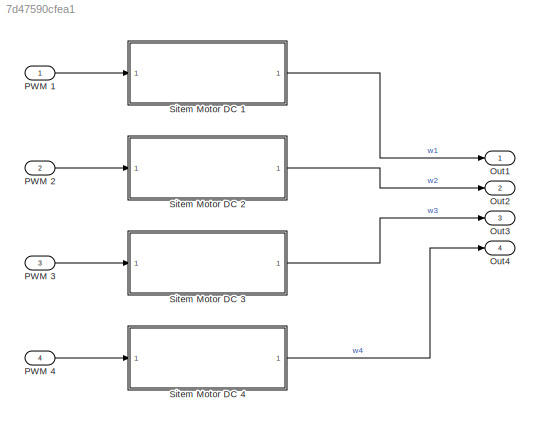
MODEL slx_7d47590cfea1
KIND model
CONFIG AbsTol = auto
CONFIG EnableMultiTasking = off
CONFIG FixedStep = auto
CONFIG MaxStep = auto
CONFIG MinStep = auto
CONFIG RelTol = 1e-3
CONFIG SampleTimeConstraint = Unconstrained
CONFIG SolverName = VariableStepAuto
CONFIG StartTime = 0.0
CONFIG StopTime = 0.03
BLOCK [Outport] Out1
BLOCK [Outport] Out2
  Port = 2
BLOCK [Outport] Out3
  Port = 3
BLOCK [Outport] Out4
  Port = 4
BLOCK [Inport] PWM 1
BLOCK [Inport] PWM 2
  Port = 2
BLOCK [Inport] PWM 3
  Port = 3
BLOCK [Inport] PWM 4
  Port = 4
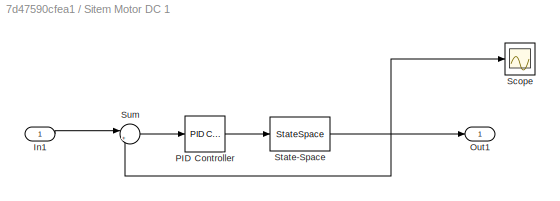
BLOCK [SubSystem] Sitem Motor DC 1
  Ports = [1, 1]
  RequestExecContextInheritance = off
BLOCK [Inport] Sitem Motor DC 1/In1
BLOCK [Outport] Sitem Motor DC 1/Out1
BLOCK [Reference] Sitem Motor DC 1/PID Controller  REF=pid_lib/PID Controller
  Ports = [1, 1]
  SourceBlock = pid_lib/PID Controller
  SourceProductBaseCode = SL
  SourceType = PID 1dof
BLOCK [Scope] Sitem Motor DC 1/Scope
  Floating = off
  NumInputPorts = 1
  Ports = [1]
  ScopeSpecificationString = Simulink.scopes.TimeScopeBlockCfg('CurrentConfiguration', extmgr.ConfigurationSet(extmgr.Configuration('Core','General UI',true),extmgr.Configuration('Core','Source UI',true),extmgr.Configuration('Sources','WiredSimulink',true),extmgr.Configuration('Visuals','Time Domain',true,'SerializedDisplays',{struct('MinYLimReal','-1.00000','MaxYLimReal','1.00000','YLabelReal','','MinYLimMag','0.00000','MaxY...<+1428ch>
BLOCK [StateSpace] Sitem Motor DC 1/State-Space
  A = A
  B = B
  C = C
  D = D
  InitialCondition = 0
  Ports = [1, 1]
BLOCK [Sum] Sitem Motor DC 1/Sum
  Inputs = |+-
  Ports = [2, 1]
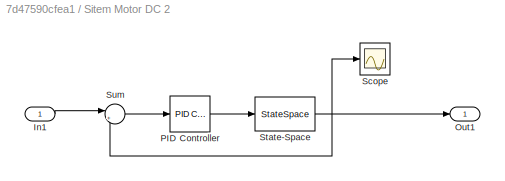
BLOCK [SubSystem] Sitem Motor DC 2
  Ports = [1, 1]
  RequestExecContextInheritance = off
BLOCK [Inport] Sitem Motor DC 2/In1
BLOCK [Outport] Sitem Motor DC 2/Out1
BLOCK [Reference] Sitem Motor DC 2/PID Controller  REF=pid_lib/PID Controller
  Ports = [1, 1]
  SourceBlock = pid_lib/PID Controller
  SourceProductBaseCode = SL
  SourceType = PID 1dof
BLOCK [Scope] Sitem Motor DC 2/Scope
  Floating = off
  NumInputPorts = 1
  Ports = [1]
  ScopeSpecificationString = Simulink.scopes.TimeScopeBlockCfg('CurrentConfiguration', extmgr.ConfigurationSet(extmgr.Configuration('Core','General UI',true),extmgr.Configuration('Core','Source UI',true),extmgr.Configuration('Sources','WiredSimulink',true),extmgr.Configuration('Visuals','Time Domain',true,'SerializedDisplays',{struct('MinYLimReal','-0.125','MaxYLimReal','1.13289','YLabelReal','','MinYLimMag','0.00000','MaxYLi...<+1386ch>  <repeated x3 — deduplicated; at blocks: Scope>
BLOCK [StateSpace] Sitem Motor DC 2/State-Space
  A = A
  B = B
  C = C
  D = D
  InitialCondition = 0
  Ports = [1, 1]
BLOCK [Sum] Sitem Motor DC 2/Sum
  Inputs = |+-
  Ports = [2, 1]
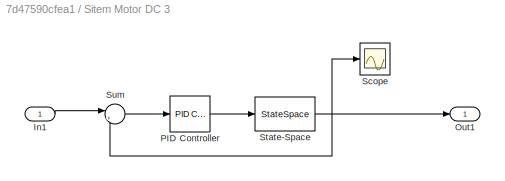
BLOCK [SubSystem] Sitem Motor DC 3
  Ports = [1, 1]
  RequestExecContextInheritance = off
BLOCK [Inport] Sitem Motor DC 3/In1
BLOCK [Outport] Sitem Motor DC 3/Out1
BLOCK [Reference] Sitem Motor DC 3/PID Controller  REF=pid_lib/PID Controller
  Ports = [1, 1]
  SourceBlock = pid_lib/PID Controller
  SourceProductBaseCode = SL
  SourceType = PID 1dof
BLOCK [Scope] Sitem Motor DC 3/Scope
  Floating = off
  NumInputPorts = 1
  Ports = [1]
BLOCK [StateSpace] Sitem Motor DC 3/State-Space
  A = A
  B = B
  C = C
  D = D
  InitialCondition = 0
  Ports = [1, 1]
BLOCK [Sum] Sitem Motor DC 3/Sum
  Inputs = |+-
  Ports = [2, 1]
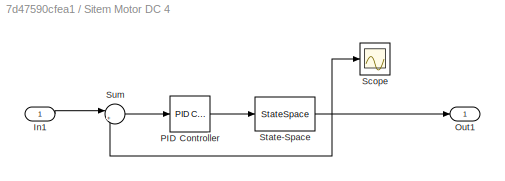
BLOCK [SubSystem] Sitem Motor DC 4
  Ports = [1, 1]
  RequestExecContextInheritance = off
BLOCK [Inport] Sitem Motor DC 4/In1
BLOCK [Outport] Sitem Motor DC 4/Out1
BLOCK [Reference] Sitem Motor DC 4/PID Controller  REF=pid_lib/PID Controller
  Ports = [1, 1]
  SourceBlock = pid_lib/PID Controller
  SourceProductBaseCode = SL
  SourceType = PID 1dof
BLOCK [Scope] Sitem Motor DC 4/Scope
  Floating = off
  NumInputPorts = 1
  Ports = [1]
BLOCK [StateSpace] Sitem Motor DC 4/State-Space
  A = A
  B = B
  C = C
  D = D
  InitialCondition = 0
  Ports = [1, 1]
BLOCK [Sum] Sitem Motor DC 4/Sum
  Inputs = |+-
  Ports = [2, 1]
LINE PWM 1:1 -> Sitem Motor DC 1:1
LINE PWM 2:1 -> Sitem Motor DC 2:1
LINE PWM 3:1 -> Sitem Motor DC 3:1
LINE PWM 4:1 -> Sitem Motor DC 4:1
LINE Sitem Motor DC 1/In1:1 -> Sitem Motor DC 1/Sum:1
LINE Sitem Motor DC 1/PID Controller:1 -> Sitem Motor DC 1/State-Space:1
NET Sitem Motor DC 1/State-Space:1 -> Sitem Motor DC 1/Out1:1, Sitem Motor DC 1/Scope:1, Sitem Motor DC 1/Sum:2
LINE Sitem Motor DC 1/Sum:1 -> Sitem Motor DC 1/PID Controller:1
LINE Sitem Motor DC 1:1 -> Out1:1
LINE Sitem Motor DC 2/In1:1 -> Sitem Motor DC 2/Sum:1
LINE Sitem Motor DC 2/PID Controller:1 -> Sitem Motor DC 2/State-Space:1
NET Sitem Motor DC 2/State-Space:1 -> Sitem Motor DC 2/Out1:1, Sitem Motor DC 2/Scope:1, Sitem Motor DC 2/Sum:2
LINE Sitem Motor DC 2/Sum:1 -> Sitem Motor DC 2/PID Controller:1
LINE Sitem Motor DC 2:1 -> Out2:1
LINE Sitem Motor DC 3/In1:1 -> Sitem Motor DC 3/Sum:1
LINE Sitem Motor DC 3/PID Controller:1 -> Sitem Motor DC 3/State-Space:1
NET Sitem Motor DC 3/State-Space:1 -> Sitem Motor DC 3/Out1:1, Sitem Motor DC 3/Scope:1, Sitem Motor DC 3/Sum:2
LINE Sitem Motor DC 3/Sum:1 -> Sitem Motor DC 3/PID Controller:1
LINE Sitem Motor DC 3:1 -> Out3:1
LINE Sitem Motor DC 4/In1:1 -> Sitem Motor DC 4/Sum:1
LINE Sitem Motor DC 4/PID Controller:1 -> Sitem Motor DC 4/State-Space:1
NET Sitem Motor DC 4/State-Space:1 -> Sitem Motor DC 4/Out1:1, Sitem Motor DC 4/Scope:1, Sitem Motor DC 4/Sum:2
LINE Sitem Motor DC 4/Sum:1 -> Sitem Motor DC 4/PID Controller:1
LINE Sitem Motor DC 4:1 -> Out4:1
note: NET lines group one-source signal fan-out (src -> all destinations, sorted); 1:1 wires keep LINE
